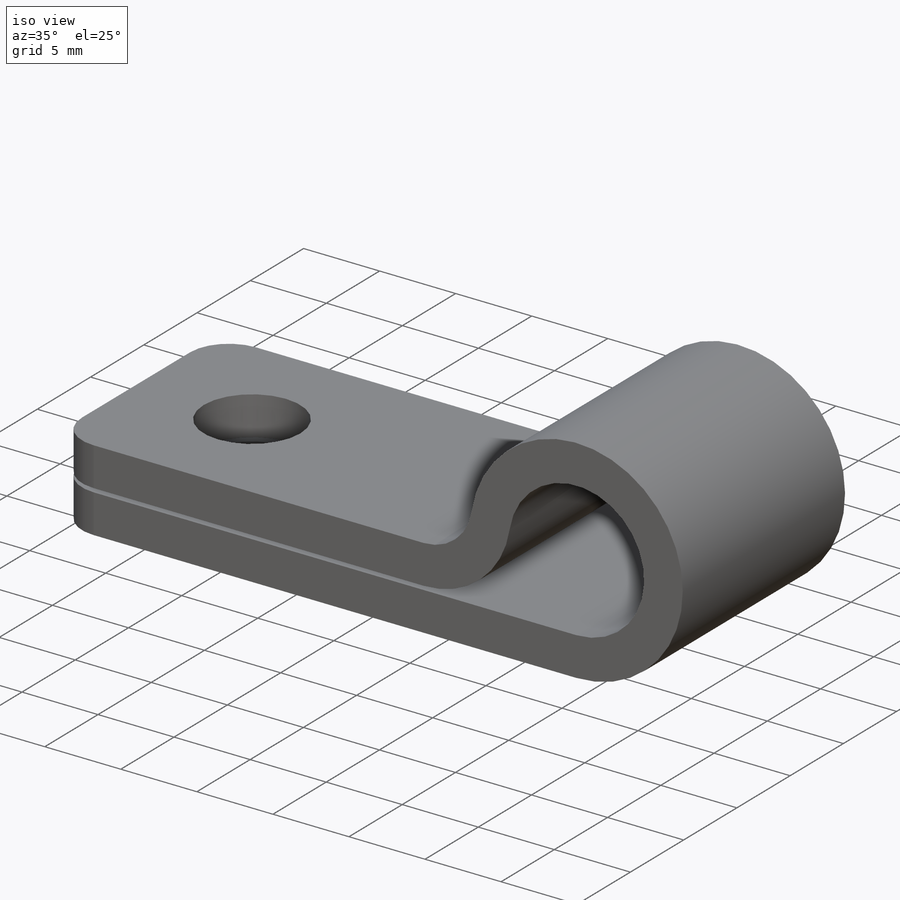
[diagram: iso view]
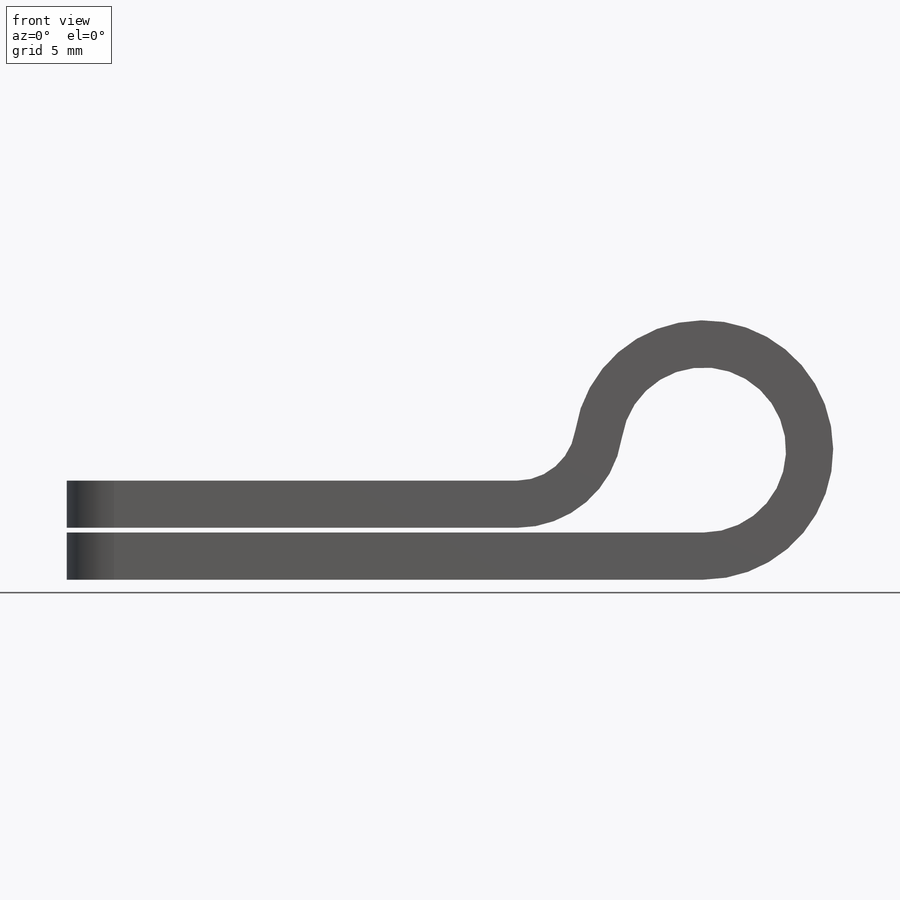
[diagram: front view]
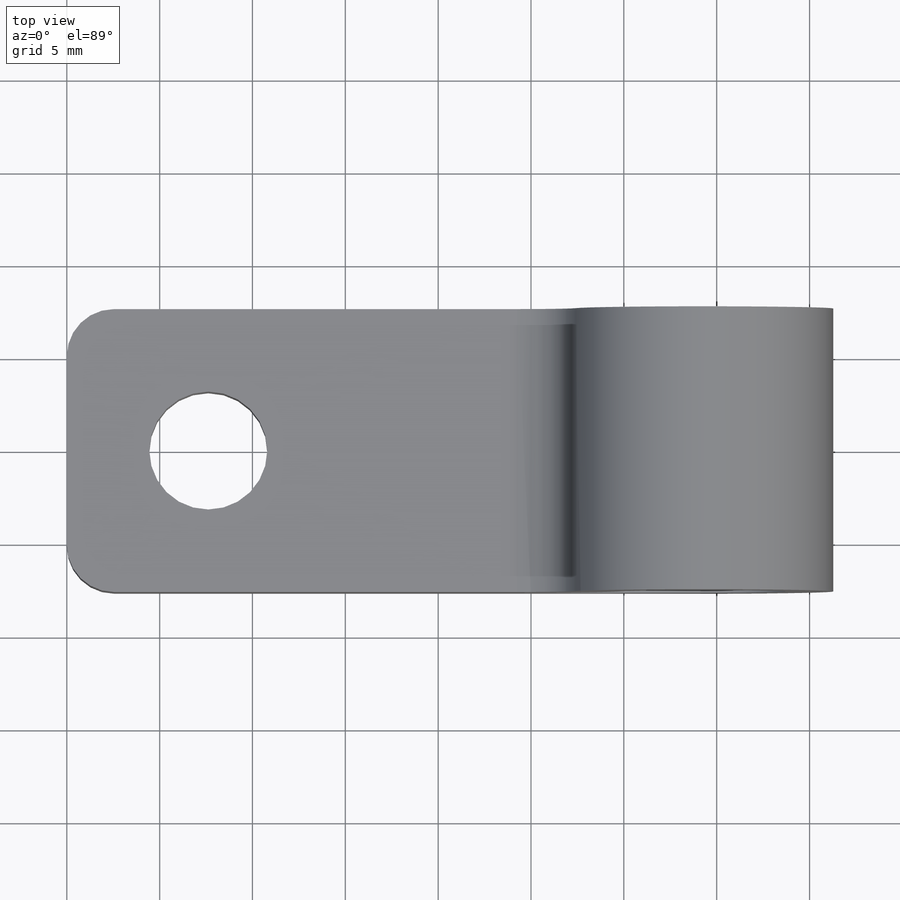
[diagram: top view]
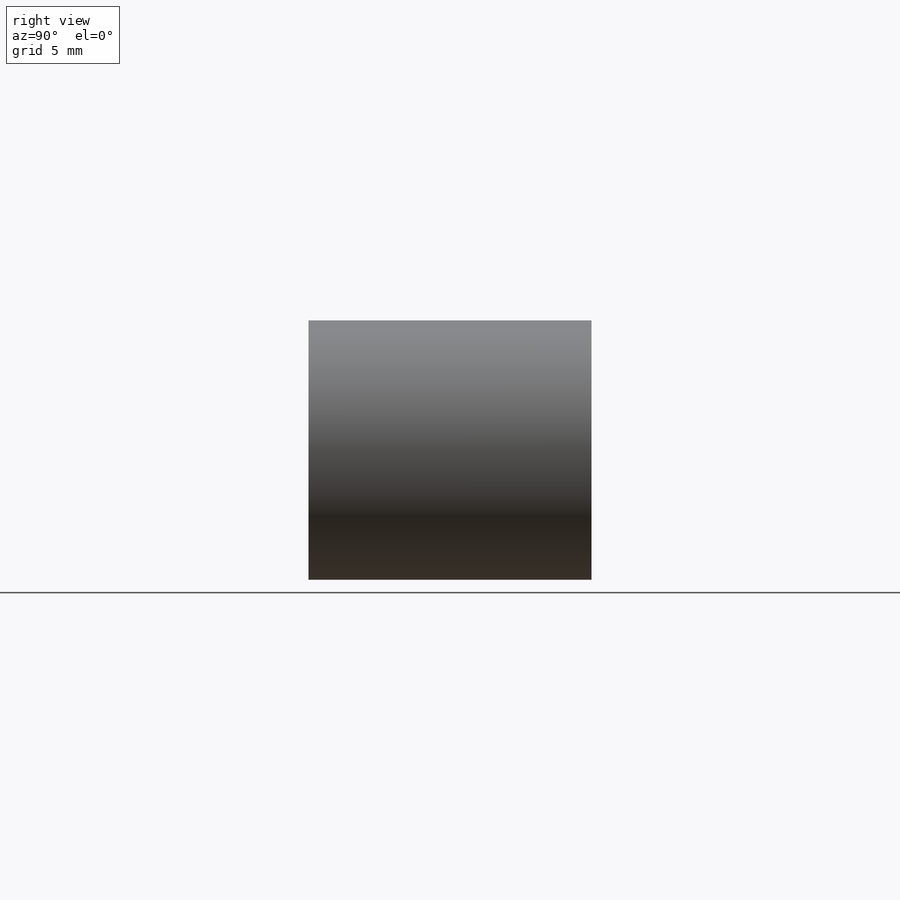
[diagram: right view]
SOLIDWORKS PART (.sldprt)
format: sldprt  version: not decoded by parser v0  size: 162,304 bytes
history: native  units: mm
features: sketch x6, plane x4, hole x2, fillet x2, material x1, extrude x1, cut_extrude x1 (+9 scaffold rows collapsed)
feature tree (26):
  scaffold x9  (default folders/planes/origin — collapsed)
  material  "Material <não especificado>"
  plane  "Plano frontal"
  plane  "Plano superior"
  plane  "Plano direito"
  plane  "Plano1"  Offset=7.62mm
  sketch  "Esboço1"
  extrude  "Ressalto-extrusão1"  Depth=15.24mm
  sketch  "Esboço2"
  cut_extrude  "Corte-extrusão1"  Depth=15.24mm
  hole  "Furo1"  Diameter=6.35mm Depth=2.54mm
  sketch  "Esboço4"
  sketch  "Esboço3"  dims[Diameter=6.35mm Depth=2.54mm]
  hole  "Furo2"  Diameter=6.35mm Depth=13.97mm
  sketch  "Esboço6"
  sketch  "Esboço5"  dims[Diameter=6.35mm Depth=13.97mm]
  fillet  "Filete1"  Radius=2.54mm
  fillet  "Filete2"  Radius=3.175mm
decode coverage: 8 of 12 modeling features carry decoded parameters
note: suppression state not decoded; provenance and decode notes live in map.json
